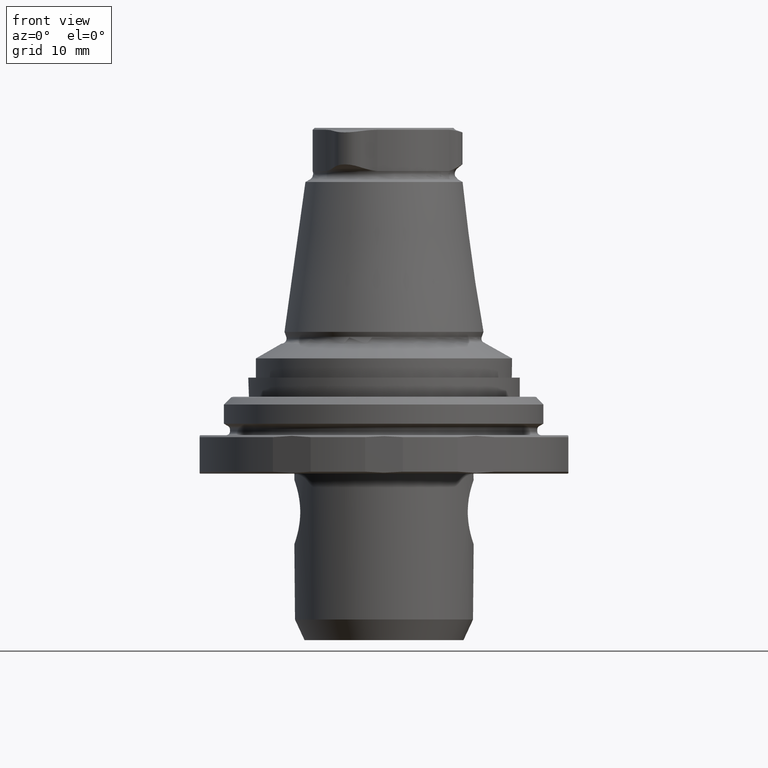
[diagram: clean part render]
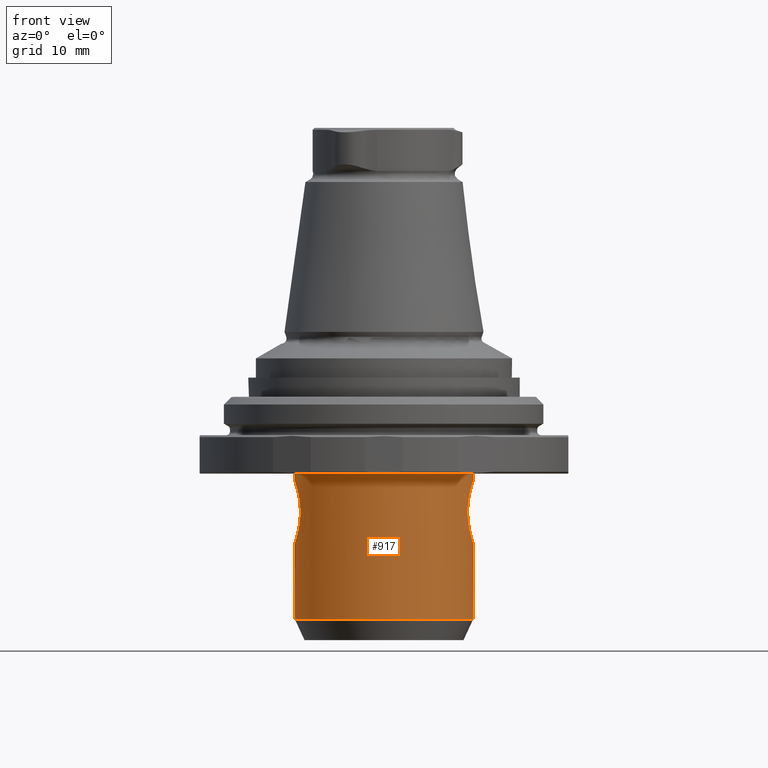
[diagram: same view with one face highlighted and labeled with its STEP entity id]
A machine part, front view. The second image highlights one B-rep face of the part: STEP entity #917.
In plain terms, the highlighted cylindrical surface (bore or boss wall) has radius 14 mm, axis along (0, 0, -1).
Its self-contained STEP definition (entity closure, byte-faithful):
#116=CIRCLE('',#999,14.);
#117=CIRCLE('',#1000,14.);
#173=ORIENTED_EDGE('',*,*,#427,.F.);
#174=ORIENTED_EDGE('',*,*,#428,.T.);
#175=ORIENTED_EDGE('',*,*,#429,.F.);
#176=ORIENTED_EDGE('',*,*,#430,.T.);
#427=EDGE_CURVE('',#554,#554,#647,.T.);
#428=EDGE_CURVE('',#555,#555,#116,.T.);
#429=EDGE_CURVE('',#556,#556,#117,.T.);
#430=EDGE_CURVE('',#557,#557,#648,.T.);
#554=VERTEX_POINT('',#1424);
#555=VERTEX_POINT('',#1426);
#556=VERTEX_POINT('',#1428);
#557=VERTEX_POINT('',#1448);
#647=B_SPLINE_CURVE_WITH_KNOTS('',3,(#1405,#1406,#1407,#1408,#1409,#1410,
#1411,#1412,#1413,#1414,#1415,#1416,#1417,#1418,#1419,#1420,#1421,#1422,
#1423),.UNSPECIFIED.,.T.,.F.,(1,1,1,1,1,1,1,1,1,1,1,1,1,1,1,1,1,1,1,1,1,
1,1),(-0.00591064977428052,-0.00394043318285368,-0.00197021659142684,1.02522296343997E-20,
0.00197021659142684,0.00394043318285368,0.00591064977428051,0.00788086636570735,
0.00985108295713419,0.011821299548561,0.0137915161399879,0.0157617327314147,
0.0177319493228415,0.0197021659142684,0.0216723825056952,0.0236425990971221,
0.0256128156885489,0.0275830322799757,0.0295532488714026,0.0315234654628294,
0.0334936820542562,0.0354638986456831,0.0374341152371099),.UNSPECIFIED.);
#648=B_SPLINE_CURVE_WITH_KNOTS('',3,(#1429,#1430,#1431,#1432,#1433,#1434,
#1435,#1436,#1437,#1438,#1439,#1440,#1441,#1442,#1443,#1444,#1445,#1446,
#1447),.UNSPECIFIED.,.T.,.F.,(1,1,1,1,1,1,1,1,1,1,1,1,1,1,1,1,1,1,1,1,1,
1,1),(-0.00591255785004649,-0.00394170523336432,-0.00197085261668216,7.92434740219796E-19,
0.00197085261668216,0.00394170523336433,0.00591255785004649,0.00788341046672865,
0.00985426308341081,0.011825115700093,0.0137959683167751,0.0157668209334573,
0.0177376735501395,0.0197085261668216,0.0216793787835038,0.023650231400186,
0.0256210840168681,0.0275919366335503,0.0295627892502324,0.0315336418669146,
0.0335044944835968,0.0354753471002789,0.0374461997169611),.UNSPECIFIED.);
#689=EDGE_LOOP('',(#173));
#690=EDGE_LOOP('',(#174));
#691=EDGE_LOOP('',(#175));
#692=EDGE_LOOP('',(#176));
#789=FACE_BOUND('',#689,.T.);
#790=FACE_BOUND('',#690,.T.);
#791=FACE_BOUND('',#691,.T.);
#792=FACE_BOUND('',#692,.T.);
#889=CYLINDRICAL_SURFACE('',#998,14.);
#917=ADVANCED_FACE('',(#789,#790,#791,#792),#889,.T.);
#998=AXIS2_PLACEMENT_3D('',#1404,#1125,#1126);
#999=AXIS2_PLACEMENT_3D('',#1425,#1127,#1128);
#1000=AXIS2_PLACEMENT_3D('',#1427,#1129,#1130);
#1125=DIRECTION('',(0.,0.,-1.));
#1126=DIRECTION('',(0.,1.,0.));
#1127=DIRECTION('',(1.27319154200133E-16,-7.79579225983867E-33,-1.));
#1128=DIRECTION('',(-1.,0.,-1.27319154200133E-16));
#1129=DIRECTION('',(0.,0.,-1.));
#1130=DIRECTION('',(0.,1.,0.));
#1404=CARTESIAN_POINT('',(0.,0.,-48.));
#1405=CARTESIAN_POINT('',(-13.901606794089,1.9780088278235,-17.7334395421597));
#1406=CARTESIAN_POINT('',(-14.0492458083482,0.0005713067828238,-18.1334075804019));
#1407=CARTESIAN_POINT('',(-13.9014099725181,-1.98029405495479,-17.7329301362324));
#1408=CARTESIAN_POINT('',(-13.5475571024937,-3.62727419789173,-16.6232536988088));
#1409=CARTESIAN_POINT('',(-13.1833680980043,-4.73261003923755,-14.9784574040104));
#1410=CARTESIAN_POINT('',(-13.0235485037442,-5.13314891300659,-13.0048442313312));
#1411=CARTESIAN_POINT('',(-13.1826217866007,-4.73478668279837,-11.0235562337038));
#1412=CARTESIAN_POINT('',(-13.548429396924,-3.62461821742189,-9.37353032281594));
#1413=CARTESIAN_POINT('',(-13.9016243273572,-1.97741267902563,-8.26658813734421));
#1414=CARTESIAN_POINT('',(-14.0490763596538,-0.00236288828303242,-7.86704712450063));
#1415=CARTESIAN_POINT('',(-13.9020695155904,1.97587799297507,-8.26522537627789));
#1416=CARTESIAN_POINT('',(-13.5478572005137,3.62676307991624,-9.37535046306245));
#1417=CARTESIAN_POINT('',(-13.1827795572027,4.73420085089146,-11.024097791184));
#1418=CARTESIAN_POINT('',(-13.0235824015155,5.13308171600769,-13.000219574831));
#1419=CARTESIAN_POINT('',(-13.1830718803832,4.73347212837824,-14.9780901703716));
#1420=CARTESIAN_POINT('',(-13.5481115023847,3.62560151949914,-16.6252475256083));
#1421=CARTESIAN_POINT('',(-13.901606794089,1.9780088278235,-17.7334395421597));
#1422=CARTESIAN_POINT('',(-14.0492458083482,0.0005713067828238,-18.1334075804019));
#1423=CARTESIAN_POINT('',(-13.9014099725181,-1.98029405495479,-17.7329301362324));
#1424=CARTESIAN_POINT('',(-14.,-1.0561923506043E-17,-18.));
#1425=CARTESIAN_POINT('',(0.,0.,-7.00407078564789));
#1426=CARTESIAN_POINT('',(-14.,0.,-7.00407078564789));
#1427=CARTESIAN_POINT('',(0.,0.,-29.7832396192357));
#1428=CARTESIAN_POINT('',(0.,14.,-29.7832396192357));
#1429=CARTESIAN_POINT('',(13.9013973071411,1.97850262672376,-17.7322822751164));
#1430=CARTESIAN_POINT('',(14.0493451270721,0.00056036466488231,-18.1385415527119));
#1431=CARTESIAN_POINT('',(13.9012221845704,-1.98074408538329,-17.7318378430005));
#1432=CARTESIAN_POINT('',(13.5486287174456,-3.6224382027127,-16.6127917132534));
#1433=CARTESIAN_POINT('',(13.1862188250493,-4.72487166434861,-14.9660436896454));
#1434=CARTESIAN_POINT('',(13.0236584136169,-5.13287117698482,-12.9946735684269));
#1435=CARTESIAN_POINT('',(13.1794697085431,-4.74327432786961,-11.0107581034366));
#1436=CARTESIAN_POINT('',(13.5469639786077,-3.63089458708451,-9.35985555202085));
#1437=CARTESIAN_POINT('',(13.9017232674596,-1.97795121661171,-8.25998584353045));
#1438=CARTESIAN_POINT('',(14.0490618503623,-0.00174885369781485,-7.86567577537829));
#1439=CARTESIAN_POINT('',(13.9020289694416,1.97715194759482,-8.25902572659813));
#1440=CARTESIAN_POINT('',(13.5463710524086,3.63304878932382,-9.36182423798783));
#1441=CARTESIAN_POINT('',(13.1796785797311,4.74255971867011,-11.0109094978334));
#1442=CARTESIAN_POINT('',(13.0236338299709,5.1329523013693,-12.9905941525814));
#1443=CARTESIAN_POINT('',(13.1860803422858,4.72533486563043,-14.9666580007764));
#1444=CARTESIAN_POINT('',(13.5493355631812,3.6201362021604,-16.6152942356559));
#1445=CARTESIAN_POINT('',(13.9013973071411,1.97850262672376,-17.7322822751164));
#1446=CARTESIAN_POINT('',(14.0493451270721,0.00056036466488231,-18.1385415527119));
#1447=CARTESIAN_POINT('',(13.9012221845704,-1.98074408538329,-17.7318378430005));
#1448=CARTESIAN_POINT('',(14.,3.43106797196083E-16,-18.0030477214941));